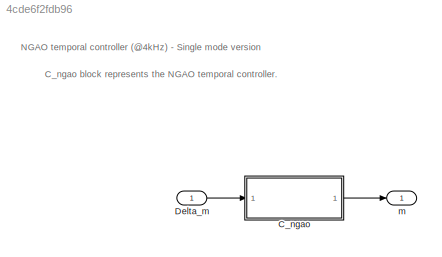
MODEL slx_4cde6f2fdb96
KIND model
CONFIG AbsTol = auto
CONFIG EnableMultiTasking = on
CONFIG FixedStep = 0.002
CONFIG MaxStep = auto
CONFIG MinStep = auto
CONFIG RelTol = 1e-3
CONFIG SampleTimeConstraint = Unconstrained
CONFIG SolverName = FixedStepAuto
CONFIG StartTime = 0.0
CONFIG StopTime = inf
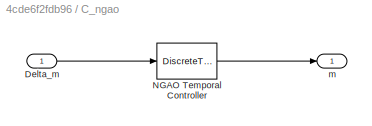
BLOCK [SubSystem] C_ngao
  Ports = [1, 1]
  RequestExecContextInheritance = off
BLOCK [Inport] C_ngao/Delta_m
  NameLocation = top
BLOCK [DiscreteTransferFcn] C_ngao/NGAO Temporal Controller
  Denominator = Cngao_d_den
  InputPortMap = u0
  Numerator = Cngao_d_num
  Ports = [1, 1]
  SampleTime = Cngao_d_Ts
  a0EqualsOne = on
BLOCK [Outport] C_ngao/m
BLOCK [Inport] Delta_m
  Interpolate = off
BLOCK [Outport] m
  VectorParamsAs1DForOutWhenUnconnected = off
ANNOTATION (root): C_ngao block represents the NGAO temporal controller.
ANNOTATION (root): NGAO temporal controller (@4kHz) - Single mode version
LINE C_ngao/Delta_m:1 -> C_ngao/NGAO Temporal Controller:1
LINE C_ngao/NGAO Temporal Controller:1 -> C_ngao/m:1
LINE C_ngao:1 -> m:1
LINE Delta_m:1 -> C_ngao:1
